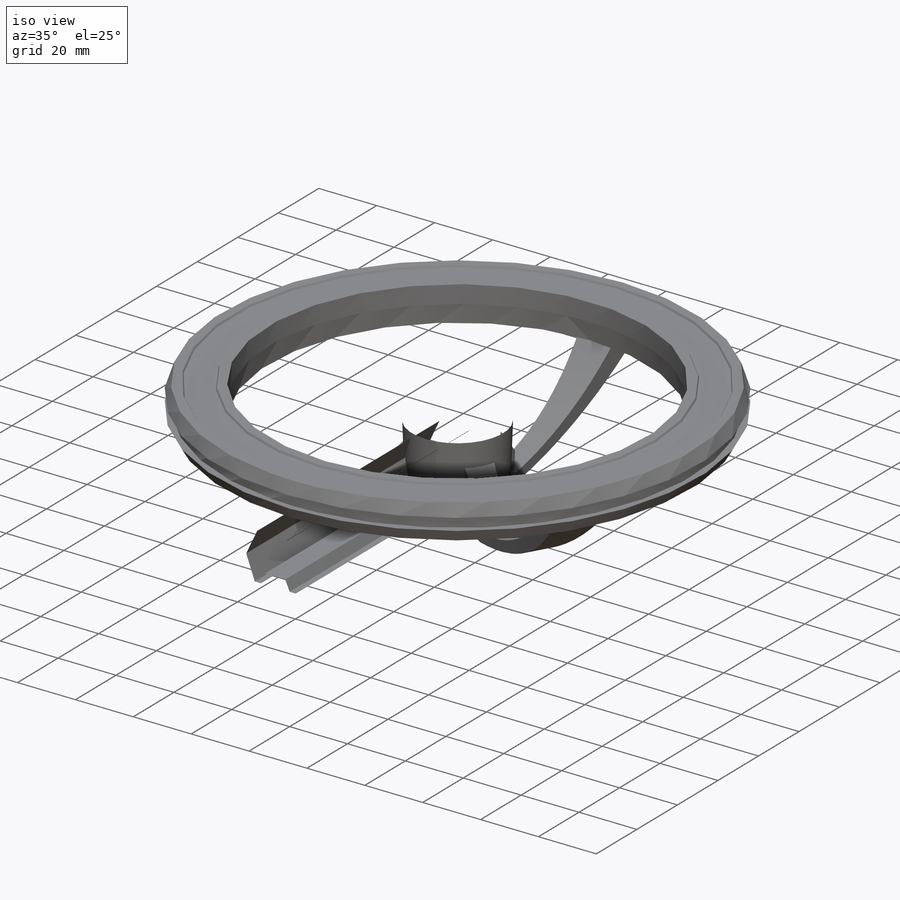
[diagram: iso view]
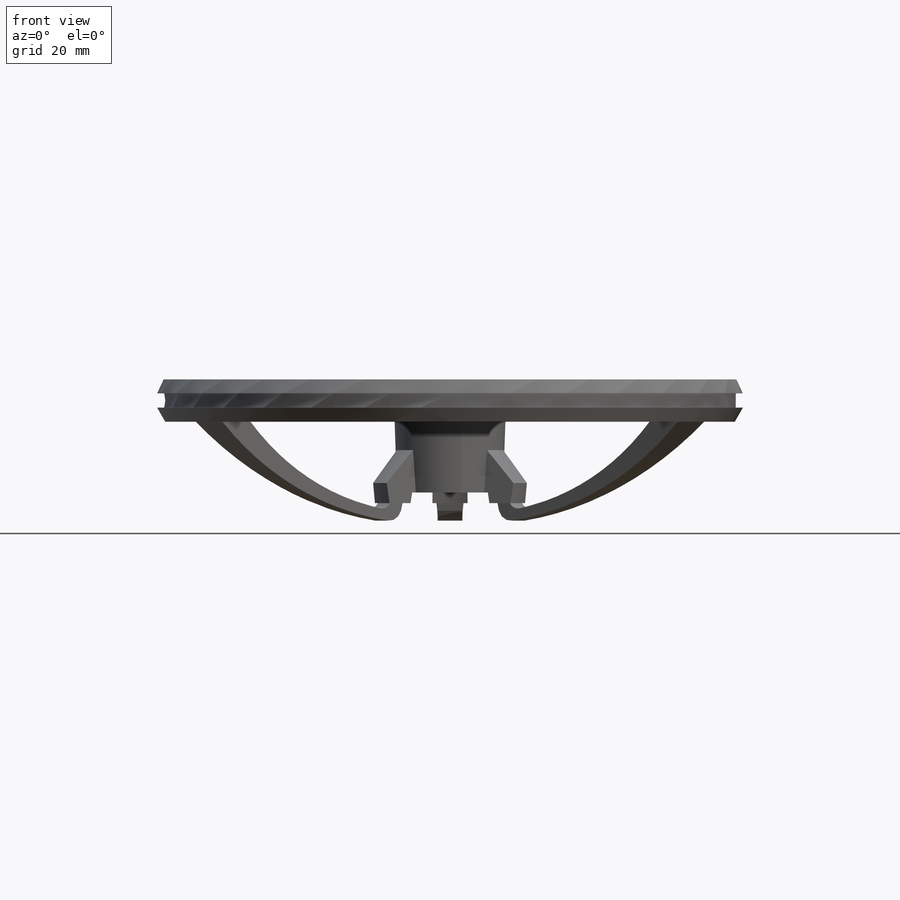
[diagram: front view]
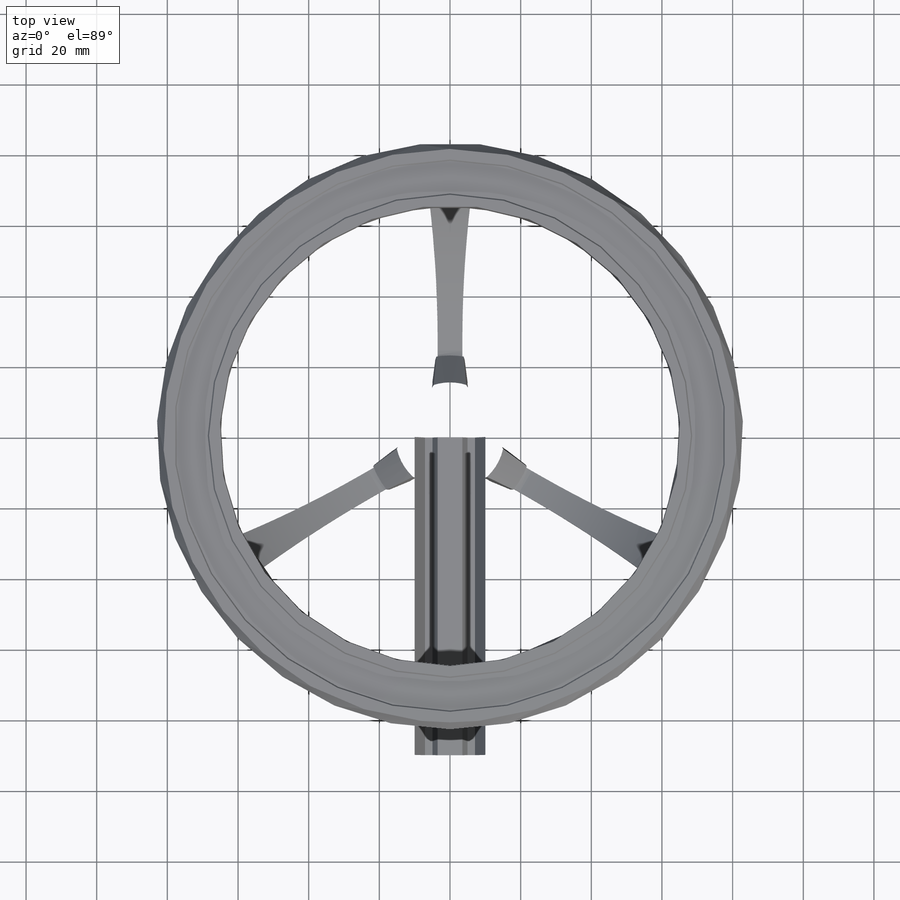
[diagram: top view]
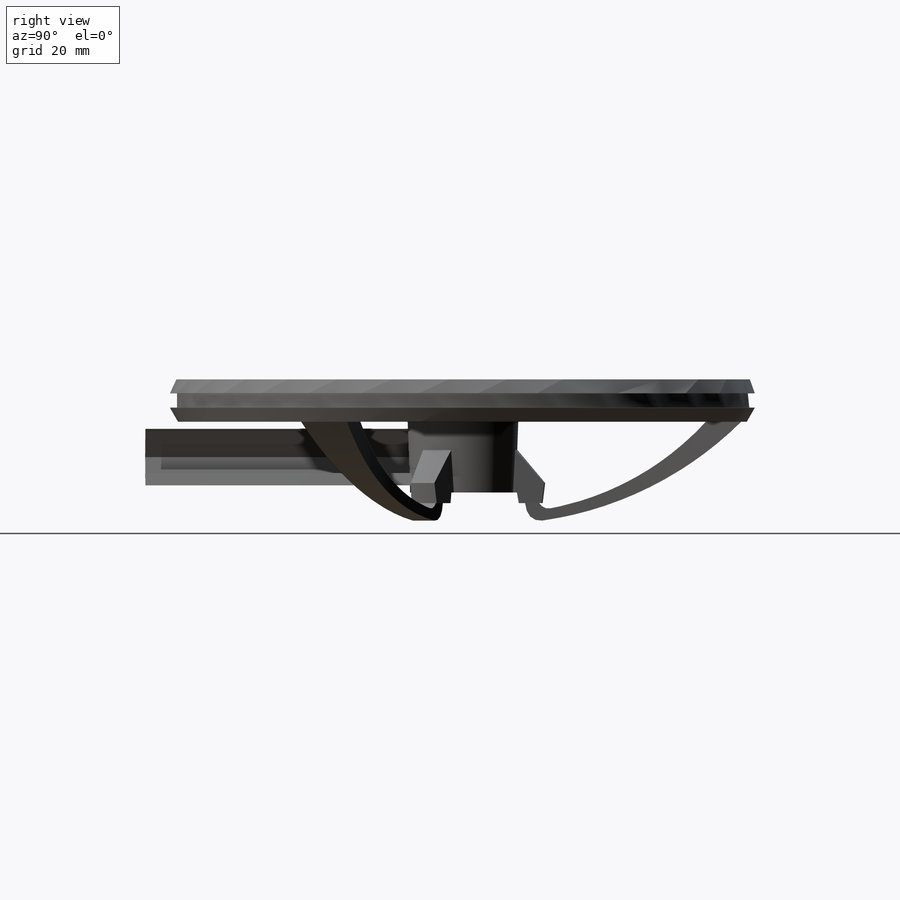
[diagram: right view]
SOLIDWORKS PART (.sldprt)
format: sldprt  version: not decoded by parser v0  size: 641,536 bytes
history: native  units: mm
features: sketch x12, surface_op x5, extrude x3, pattern_circular x2, material x1, plane x1, mirror x1, cut_extrude x1 (+13 scaffold rows collapsed)
feature tree (39):
  scaffold x13  (default folders/planes/origin — collapsed)
  material  "Material <not specified>"
  sketch  "Sketch1"  dims[c1.D1=~32.803293mm c2.D1=2.0deg c2.D2=20.0mm c2.D3=30.0mm c3.D1=360.0deg]
  sketch  "Sketch7"  dims[D1=90.0mm]
  plane  "Plane2"
  sketch  "Sketch4"  dims[c1.D1=20.0mm c1.D2=~10.747789mm c2.D2=40.0deg c2.D3=8.0mm c2.D4=~4.695173mm c3.D4=50.0deg c3.D5=8.0mm c3.D6=2.0mm]
  surface_op  "Surface-Extrude1"
  sketch  "Sketch8"  dims[c1.D1=8.0mm c2.D1=0.5deg c2.D2=8.0mm c3.D2=0.5deg]
  surface_op  "Surface-Extrude2"
  sketch  "Sketch9"  dims[D1=2.0mm D2=~0.407225mm]
  sketch  "Sketch10"  dims[c1.D1=~0.729612mm c2.D1=90.0deg c2.D2=0.6mm c2.D3=2.0mm]
  surface_op  "Surface-Extrude3"
  sketch  "Sketch11"  dims[c1.D1=7.0mm c1.D2=3.5mm c1.D3=3.5mm c2.D3=45.0deg c2.D2=3.5mm]
  surface_op  "Surface-Extrude4"
  sketch  "Sketch13"  dims[c1.D1=4.0mm c1.D2=2.0mm c2.D2=60.0deg c2.D3=10.0mm c2.D4=~0.613201mm c3.D4=30.0deg c3.D5=1.0mm c3.D6=4.0mm c3.D7=0.5mm c3.D8=3.0mm c3.D9=~1.152577mm c4.D9=25.0deg c4.D10=12.0mm c4.D2=~2.081167mm c5.D2=30.0deg c5.D11=~0.57735mm c5.D3=15.0mm c6.D11=130.0mm c6.D12=20.0mm c6.D4=~0.57735mm c7.D4=60.0deg c8.D4=~0.400541mm c9.D4=1.0deg c9.D5=2.0mm c9.D7=0.6mm c9.D13=0.6mm c10.D13=60.0deg c10.D11=6.3mm c11.D11=25.0deg c11.D14=~2.808862mm c12.D14=88.0deg c12.D15=~2.097858mm c13.D15=65.0deg c14.D15=130.0mm c14.D16=18.0mm c14.D1=360.0deg]
  sketch  "Sketch16"  dims[c1.D1=~3.689825mm c2.D1=100.0deg c2.D2=1.0mm c2.D3=~8.788904mm c3.D3=50.0deg c3.D4=3.0mm c3.D5=~9.326902mm c4.D5=97.0deg c4.D6=6.0mm c4.D7=12.0mm c4.D1=360.0deg]
  sketch  "Sketch17"  dims[c1.D1=8.0mm c1.D2=~16.871287mm c2.D2=15.0deg]
  surface_op  "Surface-Extrude5"
  mirror  "Mirror1"
  pattern_circular  "CirPattern2"  Count=3 Angle=360deg
  sketch  "Sketch18"  dims[c1.D1=3.0mm c1.D2=15.0mm c1.D3=4.0mm c1.D6=100.0mm c1.D7=80.0mm c1.D8=2.0mm c1.D9=80.0mm c1.D10=15.0mm c2.D1=~0.81847mm c2.D4=3.0mm c2.D5=2.0mm c2.D8=5.0mm c2.D9=3.0mm c2.D10=0.5mm c2.D11=1.0mm c2.D12=1.0mm]
  extrude  "Boss-Extrude1"  Depth=15mm
  sketch  "Sketch19"  dims[D1=7.0mm D2=10.0mm]
  cut_extrude  "Cut-Extrude1"  [1 undecoded]
  pattern_circular  "CirPattern3"  Count=3 Angle=360deg
  extrude  "Surface-Offset2"  Depth=0.2mm
  extrude  "Thicken2"  Depth=1mm
decode coverage: 17 of 24 modeling features carry decoded parameters
note: ~ marks probable driven/reference dimensions
note: 1 parameter value undecoded
note: suppression state not decoded; provenance and decode notes live in map.json
